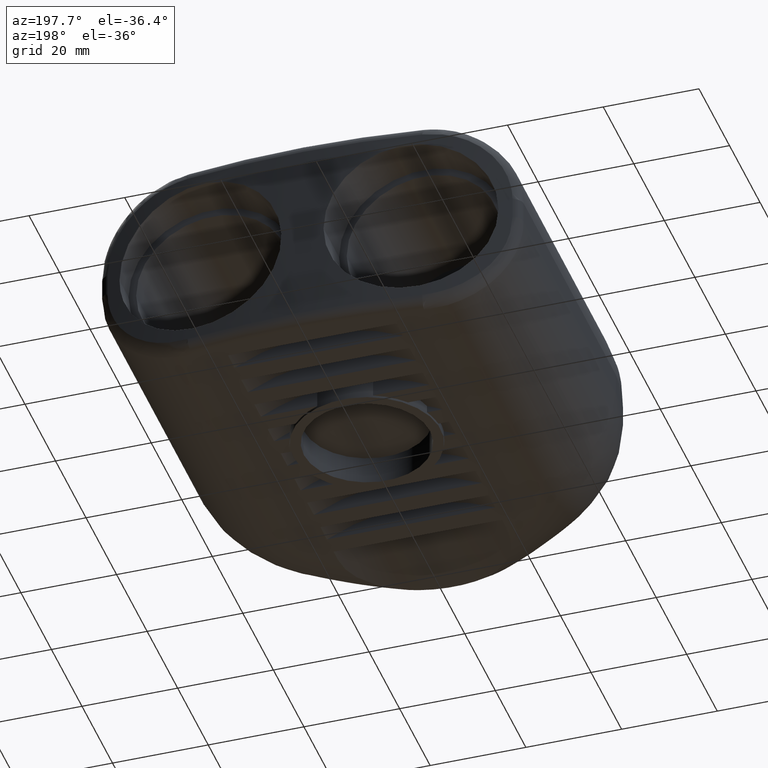
[diagram: clean part render]
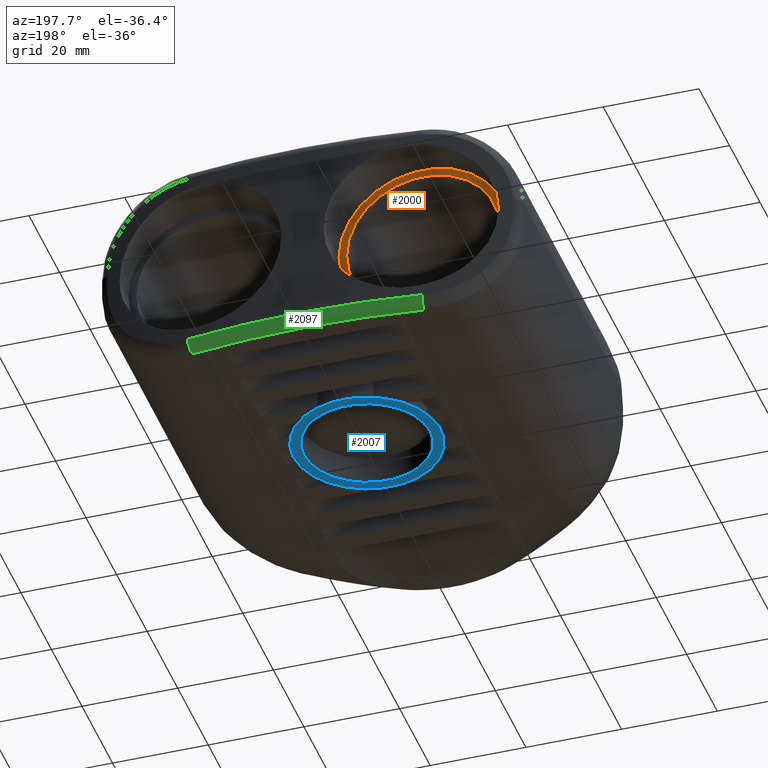
[diagram: same view with three faces highlighted in distinct colors, each labeled with its STEP entity id]
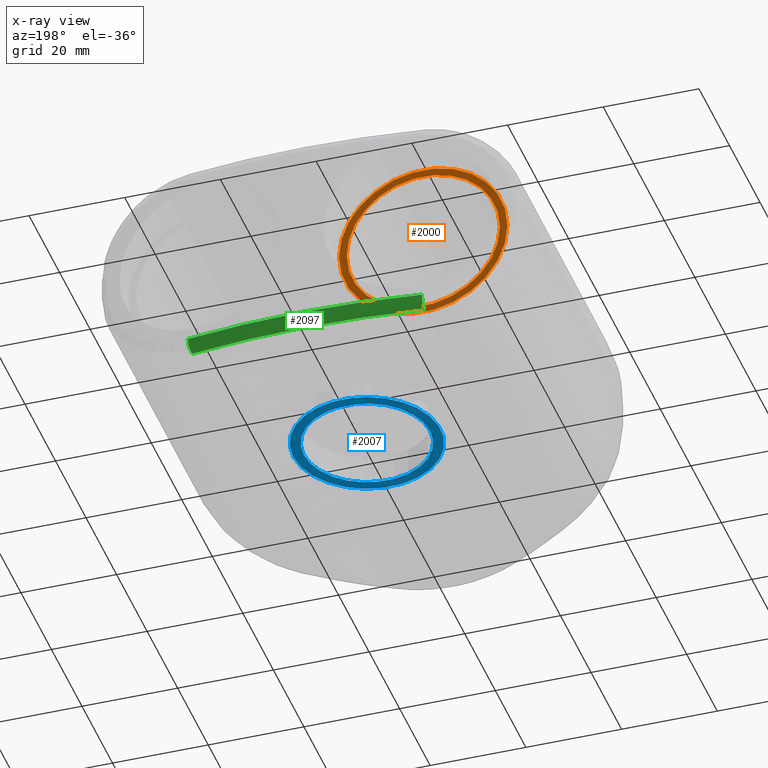
[diagram: x-ray of the same camera — body ghosted, the three highlighted faces saturated]
A machine part, auxiliary view with three faces highlighted in distinct colors.
The next image is the same camera in x-ray (body ghosted, the three faces saturated) — at least one of them is partly hidden behind the body in this view.
Their STEP definitions:

[orange] entity #2000 — the highlighted planar face has unit normal (0, 1, 0).
#334=PLANE('',#2154);
#402=FACE_BOUND('',#581,.T.);
#441=FACE_OUTER_BOUND('',#580,.T.);
#580=EDGE_LOOP('',(#1390));
#581=EDGE_LOOP('',(#1391));
#742=CIRCLE('',#2153,17.6);
#743=CIRCLE('',#2155,16.);
#879=VERTEX_POINT('',#3280);
#880=VERTEX_POINT('',#3283);
#1081=EDGE_CURVE('',#879,#879,#742,.T.);
#1082=EDGE_CURVE('',#880,#880,#743,.T.);
#1390=ORIENTED_EDGE('',*,*,#1081,.F.);
#1391=ORIENTED_EDGE('',*,*,#1082,.F.);
#2000=ADVANCED_FACE('',(#441,#402),#334,.T.);
#2153=AXIS2_PLACEMENT_3D('',#3281,#2440,#2441);
#2154=AXIS2_PLACEMENT_3D('',#3282,#2442,#2443);
#2155=AXIS2_PLACEMENT_3D('',#3284,#2444,#2445);
#2440=DIRECTION('center_axis',(0.,-1.,0.));
#2441=DIRECTION('ref_axis',(1.,0.,0.));
#2442=DIRECTION('center_axis',(0.,1.,0.));
#2443=DIRECTION('ref_axis',(0.,0.,1.));
#2444=DIRECTION('center_axis',(0.,1.,0.));
#2445=DIRECTION('ref_axis',(1.,0.,0.));
#3280=CARTESIAN_POINT('',(-39.6,76.15,2.15537836649934E-15));
#3281=CARTESIAN_POINT('Origin',(-22.,76.15,0.));
#3282=CARTESIAN_POINT('Origin',(-22.,76.15,-4.20539024479226E-16));
#3283=CARTESIAN_POINT('',(-38.,76.15,1.95943487863577E-15));
#3284=CARTESIAN_POINT('Origin',(-22.,76.15,0.));

[blue] entity #2007 — the highlighted planar face has unit normal (0, 0, 1).
#338=PLANE('',#2166);
#409=FACE_BOUND('',#595,.T.);
#448=FACE_OUTER_BOUND('',#594,.T.);
#594=EDGE_LOOP('',(#1404));
#595=EDGE_LOOP('',(#1405));
#748=CIRCLE('',#2167,15.4);
#749=CIRCLE('',#2168,13.2);
#886=VERTEX_POINT('',#3367);
#887=VERTEX_POINT('',#3369);
#1088=EDGE_CURVE('',#886,#886,#748,.T.);
#1089=EDGE_CURVE('',#887,#887,#749,.T.);
#1404=ORIENTED_EDGE('',*,*,#1088,.F.);
#1405=ORIENTED_EDGE('',*,*,#1089,.F.);
#2007=ADVANCED_FACE('',(#448,#409),#338,.F.);
#2166=AXIS2_PLACEMENT_3D('',#3366,#2466,#2467);
#2167=AXIS2_PLACEMENT_3D('',#3368,#2468,#2469);
#2168=AXIS2_PLACEMENT_3D('',#3370,#2470,#2471);
#2466=DIRECTION('center_axis',(0.,0.,1.));
#2467=DIRECTION('ref_axis',(1.,0.,0.));
#2468=DIRECTION('center_axis',(0.,0.,1.));
#2469=DIRECTION('ref_axis',(-1.,0.,0.));
#2470=DIRECTION('center_axis',(0.,0.,-1.));
#2471=DIRECTION('ref_axis',(-1.,0.,0.));
#3366=CARTESIAN_POINT('Origin',(-1.57163005890577E-16,44.0720782713025,
-22.44));
#3367=CARTESIAN_POINT('',(15.4,44.0720782713025,-22.44));
#3368=CARTESIAN_POINT('Origin',(0.,44.0720782713025,-22.44));
#3369=CARTESIAN_POINT('',(13.2,44.0720782713025,-22.44));
#3370=CARTESIAN_POINT('Origin',(0.,44.0720782713025,-22.44));

[green] entity #2097 — the highlighted toroidal blend (fillet) surface has major radius 179.759 mm and minor (blend) radius 2.2 mm.
#290=TOROIDAL_SURFACE('',#2335,179.759259259259,2.2);
#538=FACE_OUTER_BOUND('',#690,.T.);
#690=EDGE_LOOP('',(#1743,#1744,#1745,#1746));
#824=CIRCLE('',#2323,2.2);
#832=CIRCLE('',#2334,2.20000000000001);
#833=CIRCLE('',#2336,179.759259259259);
#834=CIRCLE('',#2337,181.959259259259);
#1024=VERTEX_POINT('',#3972);
#1025=VERTEX_POINT('',#3980);
#1036=VERTEX_POINT('',#4146);
#1037=VERTEX_POINT('',#4147);
#1295=EDGE_CURVE('',#1024,#1025,#824,.T.);
#1312=EDGE_CURVE('',#1036,#1037,#832,.T.);
#1315=EDGE_CURVE('',#1024,#1037,#833,.T.);
#1316=EDGE_CURVE('',#1036,#1025,#834,.T.);
#1743=ORIENTED_EDGE('',*,*,#1295,.F.);
#1744=ORIENTED_EDGE('',*,*,#1315,.T.);
#1745=ORIENTED_EDGE('',*,*,#1312,.F.);
#1746=ORIENTED_EDGE('',*,*,#1316,.T.);
#2097=ADVANCED_FACE('',(#538),#290,.T.);
#2323=AXIS2_PLACEMENT_3D('',#3981,#2892,#2893);
#2334=AXIS2_PLACEMENT_3D('',#4148,#2918,#2919);
#2335=AXIS2_PLACEMENT_3D('',#4163,#2920,#2921);
#2336=AXIS2_PLACEMENT_3D('',#4164,#2922,#2923);
#2337=AXIS2_PLACEMENT_3D('',#4165,#2924,#2925);
#2892=DIRECTION('center_axis',(0.990896687145592,-0.134624497785104,6.00063445687542E-15));
#2893=DIRECTION('ref_axis',(6.05576195250085E-15,0.,-1.));
#2918=DIRECTION('center_axis',(-0.990896687145591,-0.134624497785106,-8.00084594250055E-15));
#2919=DIRECTION('ref_axis',(-0.134624497785106,0.990896687145591,0.));
#2920=DIRECTION('center_axis',(0.,0.,-1.));
#2921=DIRECTION('ref_axis',(-1.,0.,0.));
#2922=DIRECTION('center_axis',(0.,0.,1.));
#2923=DIRECTION('ref_axis',(0.,1.,0.));
#2924=DIRECTION('center_axis',(0.,0.,-1.));
#2925=DIRECTION('ref_axis',(0.,1.,0.));
#3972=CARTESIAN_POINT('',(24.2,82.5635952244863,-22.));
#3980=CARTESIAN_POINT('',(24.4961738951272,84.7435679362066,-19.8));
#3981=CARTESIAN_POINT('Origin',(24.2,82.5635952244863,-19.8));
#4146=CARTESIAN_POINT('',(-24.4961738951273,84.7435679362066,-19.8));
#4147=CARTESIAN_POINT('',(-24.2,82.5635952244863,-22.));
#4148=CARTESIAN_POINT('Origin',(-24.2000000000001,82.5635952244863,-19.8));
#4163=CARTESIAN_POINT('Origin',(0.,-95.5592592592591,-19.8));
#4164=CARTESIAN_POINT('Origin',(0.,-95.5592592592591,-22.));
#4165=CARTESIAN_POINT('Origin',(0.,-95.5592592592591,-19.8));